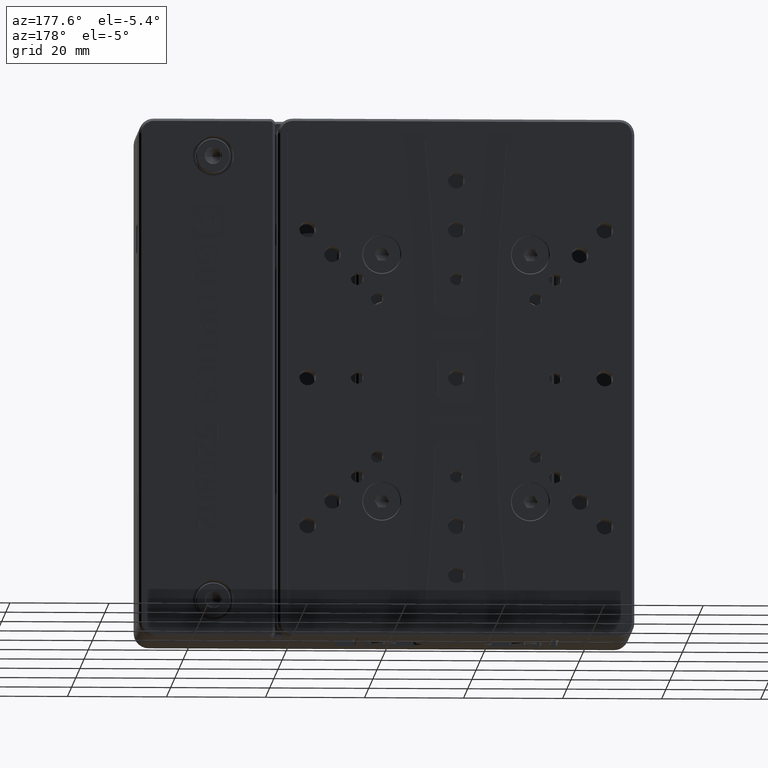
[diagram: clean part render]
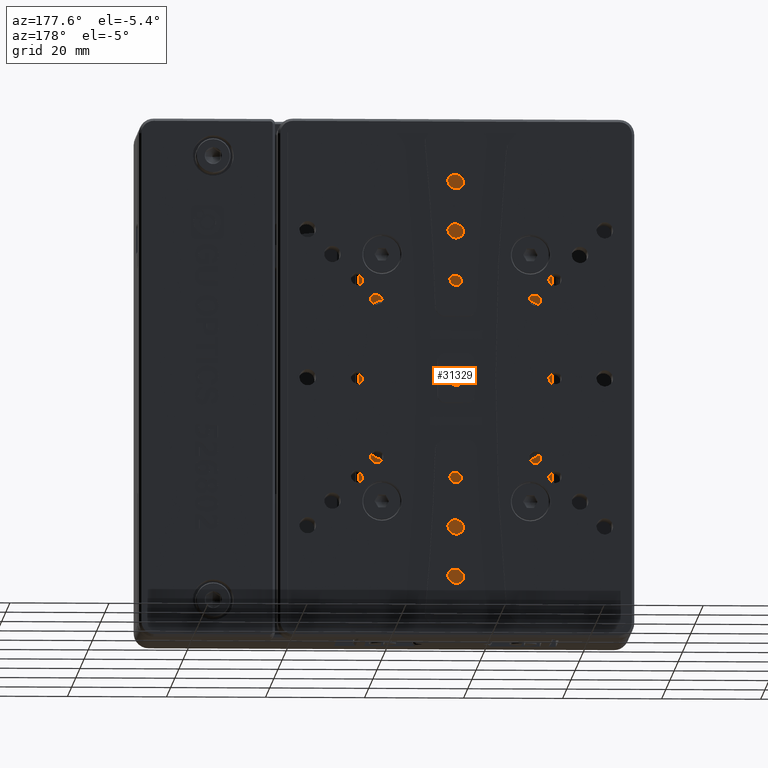
[diagram: same view with one face highlighted and labeled with its STEP entity id]
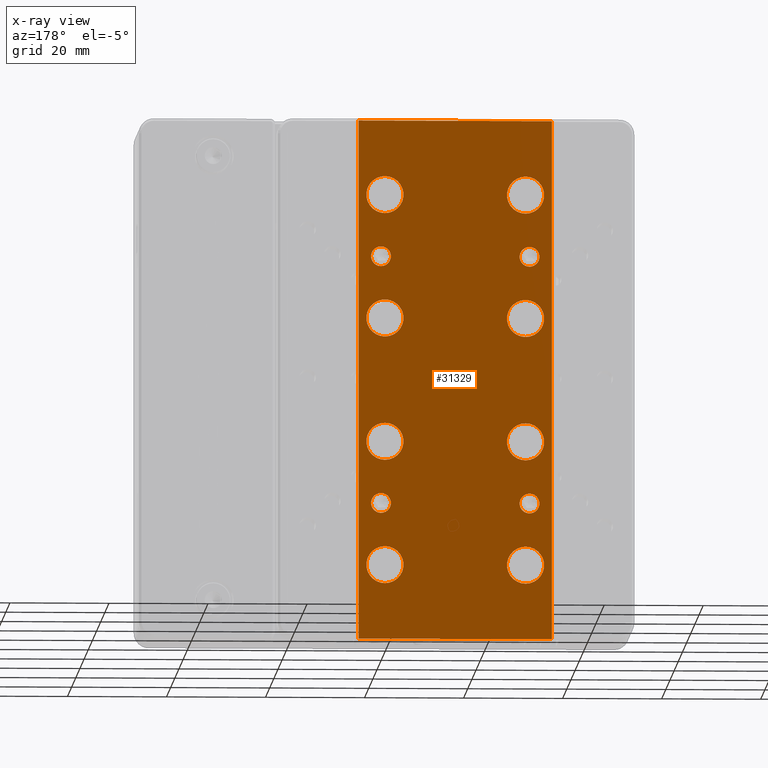
[diagram: x-ray of the same camera — body ghosted, the highlighted face saturated]
A machine part, auxiliary view. The second image highlights one B-rep face of the part: STEP entity #31329.
The next image is the same camera in x-ray: the body ghosted, the highlighted face saturated — about 0% of this face is hidden behind the body in this view.
In plain terms, the highlighted planar face has unit normal (0, -1, 0).
Its self-contained STEP definition (entity closure, byte-faithful):
#79 = VERTEX_POINT ( 'NONE', #44371 ) ;
#360 = ORIENTED_EDGE ( 'NONE', *, *, #38543, .F. ) ;
#695 = AXIS2_PLACEMENT_3D ( 'NONE', #6332, #10308, #6584 ) ;
#933 = EDGE_CURVE ( 'NONE', #35054, #7849, #5997, .T. ) ;
#1155 = EDGE_LOOP ( 'NONE', ( #13964, #43347 ) ) ;
#1630 = VERTEX_POINT ( 'NONE', #28145 ) ;
#1807 = CARTESIAN_POINT ( 'NONE',  ( 0.2000000000000000111, 3.000000000000000000, 12.50000000000000000 ) ) ;
#2130 = VERTEX_POINT ( 'NONE', #12865 ) ;
#2209 = EDGE_LOOP ( 'NONE', ( #28705, #25270 ) ) ;
#2466 = CARTESIAN_POINT ( 'NONE',  ( -28.19999999999999929, 3.000000000000000000, -37.50000000000000000 ) ) ;
#2915 = FACE_BOUND ( 'NONE', #8663, .T. ) ;
#3029 = VERTEX_POINT ( 'NONE', #30313 ) ;
#3383 = CARTESIAN_POINT ( 'NONE',  ( -29.00000000000000000, 2.999999999999670042, 27.00000000000033396 ) ) ;
#3492 = CIRCLE ( 'NONE', #18515, 2.000000000000331291 ) ;
#3522 = CARTESIAN_POINT ( 'NONE',  ( -28.19999999999999929, 3.000000000000000000, -12.50000000000000000 ) ) ;
#3607 = VERTEX_POINT ( 'NONE', #42040 ) ;
#3769 = ORIENTED_EDGE ( 'NONE', *, *, #31819, .F. ) ;
#3899 = DIRECTION ( 'NONE',  ( 0.0000000000000000000, -1.000000000000000000, 0.0000000000000000000 ) ) ;
#4182 = DIRECTION ( 'NONE',  ( 0.0000000000000000000, 0.0000000000000000000, -1.000000000000000000 ) ) ;
#4218 = DIRECTION ( 'NONE',  ( 0.0000000000000000000, 1.000000000000000000, 0.0000000000000000000 ) ) ;
#4270 = DIRECTION ( 'NONE',  ( 0.0000000000000000000, 1.000000000000000000, 0.0000000000000000000 ) ) ;
#4356 = DIRECTION ( 'NONE',  ( 0.0000000000000000000, 1.000000000000000000, 0.0000000000000000000 ) ) ;
#4384 = ORIENTED_EDGE ( 'NONE', *, *, #47435, .F. ) ;
#4391 = DIRECTION ( 'NONE',  ( 0.0000000000000000000, 1.000000000000000000, 0.0000000000000000000 ) ) ;
#4879 = CIRCLE ( 'NONE', #48406, 2.000000000000331291 ) ;
#4972 = LINE ( 'NONE', #20335, #44274 ) ;
#5033 = ORIENTED_EDGE ( 'NONE', *, *, #34596, .F. ) ;
#5063 = CIRCLE ( 'NONE', #32778, 2.000000000000331291 ) ;
#5226 = VERTEX_POINT ( 'NONE', #14138 ) ;
#5797 = DIRECTION ( 'NONE',  ( 0.0000000000000000000, 0.0000000000000000000, 1.000000000000000000 ) ) ;
#5937 = CIRCLE ( 'NONE', #17807, 3.750000000000000000 ) ;
#5987 = EDGE_CURVE ( 'NONE', #7849, #35054, #27136, .T. ) ;
#5997 = CIRCLE ( 'NONE', #23457, 2.000000000000001776 ) ;
#6000 = CARTESIAN_POINT ( 'NONE',  ( 0.2000000000000000111, 3.000000000000000000, -12.50000000000000000 ) ) ;
#6056 = ORIENTED_EDGE ( 'NONE', *, *, #6687, .F. ) ;
#6332 = CARTESIAN_POINT ( 'NONE',  ( 0.2000000000000000111, 3.000000000000000000, -37.50000000000000000 ) ) ;
#6584 = DIRECTION ( 'NONE',  ( 0.0000000000000000000, 0.0000000000000000000, 1.000000000000000000 ) ) ;
#6597 = AXIS2_PLACEMENT_3D ( 'NONE', #19963, #39059, #35101 ) ;
#6685 = EDGE_CURVE ( 'NONE', #41416, #47841, #5063, .T. ) ;
#6687 = EDGE_CURVE ( 'NONE', #23142, #43956, #28793, .T. ) ;
#6854 = CARTESIAN_POINT ( 'NONE',  ( -14.00000000000000000, 3.000000000000000000, 52.50000000000000000 ) ) ;
#7093 = DIRECTION ( 'NONE',  ( 1.000000000000000000, -0.0000000000000000000, -0.0000000000000000000 ) ) ;
#7176 = DIRECTION ( 'NONE',  ( 0.0000000000000000000, 1.000000000000000000, 0.0000000000000000000 ) ) ;
#7363 = PLANE ( 'NONE',  #46572 ) ;
#7385 = CIRCLE ( 'NONE', #6597, 3.749999999999996447 ) ;
#7423 = CIRCLE ( 'NONE', #34372, 2.000000000000001776 ) ;
#7480 = DIRECTION ( 'NONE',  ( 0.0000000000000000000, 1.000000000000000000, 0.0000000000000000000 ) ) ;
#7639 = CARTESIAN_POINT ( 'NONE',  ( 0.2000000000000000111, 3.000000000000000000, 12.50000000000000000 ) ) ;
#7724 = AXIS2_PLACEMENT_3D ( 'NONE', #33223, #26494, #11136 ) ;
#7845 = FACE_BOUND ( 'NONE', #31209, .T. ) ;
#7849 = VERTEX_POINT ( 'NONE', #26476 ) ;
#7931 = AXIS2_PLACEMENT_3D ( 'NONE', #29416, #44292, #44779 ) ;
#8104 = DIRECTION ( 'NONE',  ( 0.0000000000000000000, 1.000000000000000000, 0.0000000000000000000 ) ) ;
#8215 = AXIS2_PLACEMENT_3D ( 'NONE', #38366, #4391, #26457 ) ;
#8279 = EDGE_CURVE ( 'NONE', #43143, #11817, #48235, .T. ) ;
#8663 = EDGE_LOOP ( 'NONE', ( #40364, #4384 ) ) ;
#9011 = CARTESIAN_POINT ( 'NONE',  ( 1.000000000000000000, 3.000000000000000000, 25.00000000000000000 ) ) ;
#9752 = VECTOR ( 'NONE', #22046, 1000.000000000000000 ) ;
#10159 = CARTESIAN_POINT ( 'NONE',  ( 1.000000000000000000, 3.000000000000000000, -25.00000000000000000 ) ) ;
#10308 = DIRECTION ( 'NONE',  ( 0.0000000000000000000, 1.000000000000000000, 0.0000000000000000000 ) ) ;
#10533 = CARTESIAN_POINT ( 'NONE',  ( 5.519999999999999574, 3.000000000000000000, 52.50000000000000000 ) ) ;
#10595 = CARTESIAN_POINT ( 'NONE',  ( -34.30080000000000240, 3.000000000000000000, -54.60000000000000142 ) ) ;
#10729 = VERTEX_POINT ( 'NONE', #16498 ) ;
#10845 = FACE_BOUND ( 'NONE', #33648, .T. ) ;
#11136 = DIRECTION ( 'NONE',  ( 0.0000000000000000000, 0.0000000000000000000, 1.000000000000000000 ) ) ;
#11181 = CIRCLE ( 'NONE', #37298, 3.749999999999996447 ) ;
#11817 = VERTEX_POINT ( 'NONE', #28462 ) ;
#11838 = CARTESIAN_POINT ( 'NONE',  ( -28.19999999999999929, 3.000000000000000000, -41.24999999999999289 ) ) ;
#12368 = VERTEX_POINT ( 'NONE', #19646 ) ;
#12589 = EDGE_CURVE ( 'NONE', #12368, #19780, #11181, .T. ) ;
#12593 = DIRECTION ( 'NONE',  ( 0.0000000000000000000, 1.000000000000000000, 0.0000000000000000000 ) ) ;
#12634 = AXIS2_PLACEMENT_3D ( 'NONE', #18739, #4356, #26663 ) ;
#12640 = DIRECTION ( 'NONE',  ( 0.0000000000000000000, 1.000000000000000000, 0.0000000000000000000 ) ) ;
#12865 = CARTESIAN_POINT ( 'NONE',  ( 0.2000000000000000111, 3.000000000000000000, 41.24999999999999289 ) ) ;
#12870 = VERTEX_POINT ( 'NONE', #45342 ) ;
#13144 = DIRECTION ( 'NONE',  ( -1.000000000000000000, 0.0000000000000000000, 0.0000000000000000000 ) ) ;
#13169 = EDGE_CURVE ( 'NONE', #12870, #20170, #4879, .T. ) ;
#13269 = AXIS2_PLACEMENT_3D ( 'NONE', #2466, #12640, #42893 ) ;
#13281 = EDGE_CURVE ( 'NONE', #26449, #17518, #41554, .T. ) ;
#13335 = ORIENTED_EDGE ( 'NONE', *, *, #41170, .F. ) ;
#13456 = DIRECTION ( 'NONE',  ( 0.0000000000000000000, 1.000000000000000000, 0.0000000000000000000 ) ) ;
#13551 = DIRECTION ( 'NONE',  ( 0.0000000000000000000, 1.000000000000000000, 0.0000000000000000000 ) ) ;
#13964 = ORIENTED_EDGE ( 'NONE', *, *, #933, .F. ) ;
#14010 = CARTESIAN_POINT ( 'NONE',  ( 0.2000000000000004829, 3.000000000000000000, -16.25000000000000000 ) ) ;
#14138 = CARTESIAN_POINT ( 'NONE',  ( 0.2000000000000004829, 3.000000000000000000, 33.75000000000000000 ) ) ;
#14289 = EDGE_LOOP ( 'NONE', ( #24473, #6056 ) ) ;
#14521 = AXIS2_PLACEMENT_3D ( 'NONE', #38475, #4270, #16155 ) ;
#14559 = FACE_BOUND ( 'NONE', #42158, .T. ) ;
#14643 = EDGE_CURVE ( 'NONE', #31777, #10729, #37450, .T. ) ;
#14783 = ORIENTED_EDGE ( 'NONE', *, *, #49057, .T. ) ;
#14830 = CIRCLE ( 'NONE', #7724, 3.750000000000000000 ) ;
#14882 = DIRECTION ( 'NONE',  ( 0.0000000000000000000, 0.0000000000000000000, 1.000000000000000000 ) ) ;
#15048 = FACE_OUTER_BOUND ( 'NONE', #19269, .T. ) ;
#15075 = EDGE_CURVE ( 'NONE', #42093, #17518, #25771, .T. ) ;
#15229 = ORIENTED_EDGE ( 'NONE', *, *, #30089, .F. ) ;
#15293 = FACE_BOUND ( 'NONE', #2209, .T. ) ;
#15324 = DIRECTION ( 'NONE',  ( 0.0000000000000000000, 1.000000000000000000, 0.0000000000000000000 ) ) ;
#15333 = CARTESIAN_POINT ( 'NONE',  ( -33.52000000000000313, 3.000000000000000000, 0.0000000000000000000 ) ) ;
#15370 = CARTESIAN_POINT ( 'NONE',  ( 0.2000000000000000111, 3.000000000000000000, 37.50000000000000000 ) ) ;
#16073 = CARTESIAN_POINT ( 'NONE',  ( -29.00000000000000000, 2.999999999999670042, 25.00000000000000000 ) ) ;
#16155 = DIRECTION ( 'NONE',  ( 0.0000000000000000000, 0.0000000000000000000, 1.000000000000000000 ) ) ;
#16271 = VERTEX_POINT ( 'NONE', #16577 ) ;
#16291 = CIRCLE ( 'NONE', #24201, 3.749999999999996447 ) ;
#16498 = CARTESIAN_POINT ( 'NONE',  ( 0.2000000000000000111, 3.000000000000000000, 16.25000000000000000 ) ) ;
#16577 = CARTESIAN_POINT ( 'NONE',  ( 1.000000000000000222, 3.000000000000000000, -26.99999999999998579 ) ) ;
#16766 = ORIENTED_EDGE ( 'NONE', *, *, #21961, .F. ) ;
#16915 = ORIENTED_EDGE ( 'NONE', *, *, #13281, .T. ) ;
#17296 = CIRCLE ( 'NONE', #41060, 3.750000000000000000 ) ;
#17518 = VERTEX_POINT ( 'NONE', #10533 ) ;
#17807 = AXIS2_PLACEMENT_3D ( 'NONE', #41173, #18609, #14882 ) ;
#18023 = FACE_BOUND ( 'NONE', #43389, .T. ) ;
#18462 = VERTEX_POINT ( 'NONE', #14010 ) ;
#18515 = AXIS2_PLACEMENT_3D ( 'NONE', #39768, #24631, #5797 ) ;
#18609 = DIRECTION ( 'NONE',  ( 0.0000000000000000000, 1.000000000000000000, 0.0000000000000000000 ) ) ;
#18739 = CARTESIAN_POINT ( 'NONE',  ( -28.19999999999999929, 3.000000000000000000, -37.50000000000000000 ) ) ;
#18767 = ORIENTED_EDGE ( 'NONE', *, *, #6685, .F. ) ;
#18980 = CARTESIAN_POINT ( 'NONE',  ( -28.19999999999999929, 3.000000000000000000, 12.50000000000000000 ) ) ;
#18984 = CIRCLE ( 'NONE', #31670, 3.750000000000000000 ) ;
#19068 = DIRECTION ( 'NONE',  ( 0.0000000000000000000, 0.0000000000000000000, 1.000000000000000000 ) ) ;
#19269 = EDGE_LOOP ( 'NONE', ( #16915, #23451, #14783, #13335 ) ) ;
#19331 = DIRECTION ( 'NONE',  ( 0.0000000000000000000, 0.0000000000000000000, 1.000000000000000000 ) ) ;
#19646 = CARTESIAN_POINT ( 'NONE',  ( -28.19999999999999929, 3.000000000000000000, 41.24999999999999289 ) ) ;
#19780 = VERTEX_POINT ( 'NONE', #34529 ) ;
#19952 = VECTOR ( 'NONE', #7093, 1000.000000000000000 ) ;
#19963 = CARTESIAN_POINT ( 'NONE',  ( 0.2000000000000000111, 3.000000000000000000, -37.50000000000000000 ) ) ;
#20170 = VERTEX_POINT ( 'NONE', #23776 ) ;
#20335 = CARTESIAN_POINT ( 'NONE',  ( -14.00000000000000000, 3.000000000000000000, -52.50000000000000000 ) ) ;
#20396 = DIRECTION ( 'NONE',  ( 0.0000000000000000000, 1.000000000000000000, 0.0000000000000000000 ) ) ;
#20846 = EDGE_CURVE ( 'NONE', #79, #25661, #37897, .T. ) ;
#21122 = DIRECTION ( 'NONE',  ( 0.0000000000000000000, 0.0000000000000000000, 1.000000000000000000 ) ) ;
#21961 = EDGE_CURVE ( 'NONE', #3607, #40371, #18984, .T. ) ;
#22046 = DIRECTION ( 'NONE',  ( 0.0000000000000000000, 0.0000000000000000000, 1.000000000000000000 ) ) ;
#22257 = CARTESIAN_POINT ( 'NONE',  ( -28.19999999999999929, 3.000000000000000000, -8.750000000000000000 ) ) ;
#22264 = CARTESIAN_POINT ( 'NONE',  ( 0.2000000000000000111, 3.000000000000000000, -33.75000000000000000 ) ) ;
#22273 = LINE ( 'NONE', #15333, #28173 ) ;
#22390 = AXIS2_PLACEMENT_3D ( 'NONE', #1807, #20396, #35294 ) ;
#22723 = DIRECTION ( 'NONE',  ( 1.000000000000000000, 0.0000000000000000000, 0.0000000000000000000 ) ) ;
#22756 = DIRECTION ( 'NONE',  ( 0.0000000000000000000, 0.0000000000000000000, 1.000000000000000000 ) ) ;
#22761 = CIRCLE ( 'NONE', #31480, 2.000000000000331291 ) ;
#23055 = DIRECTION ( 'NONE',  ( 0.0000000000000000000, 0.0000000000000000000, 1.000000000000000000 ) ) ;
#23142 = VERTEX_POINT ( 'NONE', #33087 ) ;
#23218 = DIRECTION ( 'NONE',  ( 0.0000000000000000000, 0.0000000000000000000, 1.000000000000000000 ) ) ;
#23451 = ORIENTED_EDGE ( 'NONE', *, *, #15075, .F. ) ;
#23457 = AXIS2_PLACEMENT_3D ( 'NONE', #9011, #13456, #46686 ) ;
#23776 = CARTESIAN_POINT ( 'NONE',  ( -29.00000000000000000, 2.999999999999670042, -27.00000000000033751 ) ) ;
#24201 = AXIS2_PLACEMENT_3D ( 'NONE', #15370, #4218, #19331 ) ;
#24473 = ORIENTED_EDGE ( 'NONE', *, *, #48863, .F. ) ;
#24631 = DIRECTION ( 'NONE',  ( 0.0000000000000000000, 1.000000000000000000, 0.0000000000000000000 ) ) ;
#25270 = ORIENTED_EDGE ( 'NONE', *, *, #14643, .F. ) ;
#25661 = VERTEX_POINT ( 'NONE', #22264 ) ;
#25771 = LINE ( 'NONE', #28745, #9752 ) ;
#25957 = EDGE_LOOP ( 'NONE', ( #46235, #39609 ) ) ;
#26196 = FACE_BOUND ( 'NONE', #1155, .T. ) ;
#26206 = EDGE_CURVE ( 'NONE', #20170, #12870, #3492, .T. ) ;
#26441 = FACE_BOUND ( 'NONE', #48158, .T. ) ;
#26449 = VERTEX_POINT ( 'NONE', #35508 ) ;
#26457 = DIRECTION ( 'NONE',  ( 0.0000000000000000000, 0.0000000000000000000, 1.000000000000000000 ) ) ;
#26476 = CARTESIAN_POINT ( 'NONE',  ( 1.000000000000000222, 3.000000000000000000, 23.00000000000001776 ) ) ;
#26494 = DIRECTION ( 'NONE',  ( 0.0000000000000000000, 1.000000000000000000, 0.0000000000000000000 ) ) ;
#26663 = DIRECTION ( 'NONE',  ( 0.0000000000000000000, 0.0000000000000000000, 1.000000000000000000 ) ) ;
#26740 = CARTESIAN_POINT ( 'NONE',  ( 1.000000000000000000, 3.000000000000000000, -25.00000000000000000 ) ) ;
#26744 = ORIENTED_EDGE ( 'NONE', *, *, #8279, .F. ) ;
#27136 = CIRCLE ( 'NONE', #14521, 2.000000000000001776 ) ;
#27206 = DIRECTION ( 'NONE',  ( 0.0000000000000000000, 0.0000000000000000000, 1.000000000000000000 ) ) ;
#28145 = CARTESIAN_POINT ( 'NONE',  ( 1.000000000000000000, 3.000000000000000000, -23.00000000000001776 ) ) ;
#28173 = VECTOR ( 'NONE', #4182, 1000.000000000000000 ) ;
#28404 = CIRCLE ( 'NONE', #48239, 3.749999999999996447 ) ;
#28430 = CIRCLE ( 'NONE', #41918, 3.750000000000000000 ) ;
#28462 = CARTESIAN_POINT ( 'NONE',  ( -28.19999999999999929, 3.000000000000000000, -33.75000000000000000 ) ) ;
#28558 = DIRECTION ( 'NONE',  ( 0.0000000000000000000, 1.000000000000000000, 0.0000000000000000000 ) ) ;
#28660 = DIRECTION ( 'NONE',  ( 0.0000000000000000000, 0.0000000000000000000, 1.000000000000000000 ) ) ;
#28705 = ORIENTED_EDGE ( 'NONE', *, *, #40153, .F. ) ;
#28745 = CARTESIAN_POINT ( 'NONE',  ( 5.519999999999999574, 3.000000000000000000, 0.0000000000000000000 ) ) ;
#28793 = CIRCLE ( 'NONE', #8215, 3.750000000000000000 ) ;
#28818 = ORIENTED_EDGE ( 'NONE', *, *, #13169, .F. ) ;
#28907 = DIRECTION ( 'NONE',  ( 0.0000000000000000000, 1.000000000000000000, 0.0000000000000000000 ) ) ;
#29416 = CARTESIAN_POINT ( 'NONE',  ( -28.19999999999999929, 3.000000000000000000, 37.50000000000000000 ) ) ;
#29644 = DIRECTION ( 'NONE',  ( 0.0000000000000000000, 0.0000000000000000000, 1.000000000000000000 ) ) ;
#29675 = FACE_BOUND ( 'NONE', #43572, .T. ) ;
#30089 = EDGE_CURVE ( 'NONE', #3029, #18462, #14830, .T. ) ;
#30170 = FACE_BOUND ( 'NONE', #45508, .T. ) ;
#30173 = EDGE_CURVE ( 'NONE', #47841, #41416, #22761, .T. ) ;
#30313 = CARTESIAN_POINT ( 'NONE',  ( 0.2000000000000000111, 3.000000000000000000, -8.750000000000000000 ) ) ;
#31043 = ORIENTED_EDGE ( 'NONE', *, *, #39809, .F. ) ;
#31209 = EDGE_LOOP ( 'NONE', ( #42271, #26744 ) ) ;
#31329 = ADVANCED_FACE ( 'NONE', ( #14559, #26441, #10845, #26196, #7845, #37116, #30170, #2915, #18023, #29675, #15293, #49012, #15048 ), #7363, .F. ) ;
#31480 = AXIS2_PLACEMENT_3D ( 'NONE', #16073, #12593, #27206 ) ;
#31670 = AXIS2_PLACEMENT_3D ( 'NONE', #18980, #41795, #29644 ) ;
#31777 = VERTEX_POINT ( 'NONE', #42496 ) ;
#31819 = EDGE_CURVE ( 'NONE', #18462, #3029, #17296, .T. ) ;
#32081 = AXIS2_PLACEMENT_3D ( 'NONE', #7639, #15324, #22756 ) ;
#32398 = CARTESIAN_POINT ( 'NONE',  ( -29.00000000000000000, 2.999999999999670042, -25.00000000000000000 ) ) ;
#32778 = AXIS2_PLACEMENT_3D ( 'NONE', #42085, #8104, #23218 ) ;
#32859 = CIRCLE ( 'NONE', #32081, 3.750000000000000000 ) ;
#33087 = CARTESIAN_POINT ( 'NONE',  ( -28.19999999999999929, 3.000000000000000000, -16.25000000000000000 ) ) ;
#33223 = CARTESIAN_POINT ( 'NONE',  ( 0.2000000000000000111, 3.000000000000000000, -12.50000000000000000 ) ) ;
#33248 = AXIS2_PLACEMENT_3D ( 'NONE', #26740, #41878, #19068 ) ;
#33529 = DIRECTION ( 'NONE',  ( 0.0000000000000000000, 0.0000000000000000000, 1.000000000000000000 ) ) ;
#33648 = EDGE_LOOP ( 'NONE', ( #360, #5033 ) ) ;
#34372 = AXIS2_PLACEMENT_3D ( 'NONE', #10159, #7176, #48328 ) ;
#34439 = CARTESIAN_POINT ( 'NONE',  ( 5.519999999999999574, 3.000000000000000000, -52.50000000000000000 ) ) ;
#34529 = CARTESIAN_POINT ( 'NONE',  ( -28.19999999999999929, 3.000000000000000000, 33.75000000000000000 ) ) ;
#34596 = EDGE_CURVE ( 'NONE', #16271, #1630, #44306, .T. ) ;
#34672 = CIRCLE ( 'NONE', #13269, 3.749999999999996447 ) ;
#35054 = VERTEX_POINT ( 'NONE', #38582 ) ;
#35101 = DIRECTION ( 'NONE',  ( 0.0000000000000000000, 0.0000000000000000000, 1.000000000000000000 ) ) ;
#35294 = DIRECTION ( 'NONE',  ( 0.0000000000000000000, 0.0000000000000000000, 1.000000000000000000 ) ) ;
#35508 = CARTESIAN_POINT ( 'NONE',  ( -33.52000000000000313, 2.999999999999690026, 52.50000000000000000 ) ) ;
#36612 = ORIENTED_EDGE ( 'NONE', *, *, #37745, .F. ) ;
#37116 = FACE_BOUND ( 'NONE', #14289, .T. ) ;
#37298 = AXIS2_PLACEMENT_3D ( 'NONE', #45641, #45398, #23055 ) ;
#37450 = CIRCLE ( 'NONE', #22390, 3.750000000000000000 ) ;
#37745 = EDGE_CURVE ( 'NONE', #25661, #79, #7385, .T. ) ;
#37897 = CIRCLE ( 'NONE', #695, 3.749999999999996447 ) ;
#38366 = CARTESIAN_POINT ( 'NONE',  ( -28.19999999999999929, 3.000000000000000000, -12.50000000000000000 ) ) ;
#38438 = ORIENTED_EDGE ( 'NONE', *, *, #30173, .F. ) ;
#38475 = CARTESIAN_POINT ( 'NONE',  ( 1.000000000000000000, 3.000000000000000000, 25.00000000000000000 ) ) ;
#38543 = EDGE_CURVE ( 'NONE', #1630, #16271, #7423, .T. ) ;
#38582 = CARTESIAN_POINT ( 'NONE',  ( 1.000000000000000000, 3.000000000000000000, 26.99999999999998579 ) ) ;
#39059 = DIRECTION ( 'NONE',  ( 0.0000000000000000000, 1.000000000000000000, 0.0000000000000000000 ) ) ;
#39089 = CARTESIAN_POINT ( 'NONE',  ( -33.52000000000000313, 2.999999999999690026, -52.50000000000000000 ) ) ;
#39534 = CIRCLE ( 'NONE', #7931, 3.749999999999996447 ) ;
#39609 = ORIENTED_EDGE ( 'NONE', *, *, #42756, .F. ) ;
#39768 = CARTESIAN_POINT ( 'NONE',  ( -29.00000000000000000, 2.999999999999670042, -25.00000000000000000 ) ) ;
#39782 = CARTESIAN_POINT ( 'NONE',  ( -29.00000000000000000, 2.999999999999670042, 22.99999999999966960 ) ) ;
#39809 = EDGE_CURVE ( 'NONE', #40371, #3607, #5937, .T. ) ;
#40153 = EDGE_CURVE ( 'NONE', #10729, #31777, #32859, .T. ) ;
#40364 = ORIENTED_EDGE ( 'NONE', *, *, #12589, .F. ) ;
#40371 = VERTEX_POINT ( 'NONE', #47014 ) ;
#41060 = AXIS2_PLACEMENT_3D ( 'NONE', #6000, #28558, #21122 ) ;
#41170 = EDGE_CURVE ( 'NONE', #26449, #43103, #22273, .T. ) ;
#41173 = CARTESIAN_POINT ( 'NONE',  ( -28.19999999999999929, 3.000000000000000000, 12.50000000000000000 ) ) ;
#41416 = VERTEX_POINT ( 'NONE', #3383 ) ;
#41554 = LINE ( 'NONE', #6854, #19952 ) ;
#41795 = DIRECTION ( 'NONE',  ( 0.0000000000000000000, 1.000000000000000000, 0.0000000000000000000 ) ) ;
#41878 = DIRECTION ( 'NONE',  ( 0.0000000000000000000, 1.000000000000000000, 0.0000000000000000000 ) ) ;
#41918 = AXIS2_PLACEMENT_3D ( 'NONE', #3522, #7480, #33529 ) ;
#42040 = CARTESIAN_POINT ( 'NONE',  ( -28.19999999999999929, 3.000000000000000000, 8.750000000000000000 ) ) ;
#42085 = CARTESIAN_POINT ( 'NONE',  ( -29.00000000000000000, 2.999999999999670042, 25.00000000000000000 ) ) ;
#42093 = VERTEX_POINT ( 'NONE', #34439 ) ;
#42158 = EDGE_LOOP ( 'NONE', ( #28818, #43488 ) ) ;
#42271 = ORIENTED_EDGE ( 'NONE', *, *, #45329, .F. ) ;
#42496 = CARTESIAN_POINT ( 'NONE',  ( 0.2000000000000004829, 3.000000000000000000, 8.750000000000000000 ) ) ;
#42756 = EDGE_CURVE ( 'NONE', #5226, #2130, #16291, .T. ) ;
#42893 = DIRECTION ( 'NONE',  ( 0.0000000000000000000, 0.0000000000000000000, 1.000000000000000000 ) ) ;
#43103 = VERTEX_POINT ( 'NONE', #39089 ) ;
#43143 = VERTEX_POINT ( 'NONE', #11838 ) ;
#43347 = ORIENTED_EDGE ( 'NONE', *, *, #5987, .F. ) ;
#43389 = EDGE_LOOP ( 'NONE', ( #36612, #48765 ) ) ;
#43488 = ORIENTED_EDGE ( 'NONE', *, *, #26206, .F. ) ;
#43572 = EDGE_LOOP ( 'NONE', ( #15229, #3769 ) ) ;
#43956 = VERTEX_POINT ( 'NONE', #22257 ) ;
#44274 = VECTOR ( 'NONE', #13144, 1000.000000000000000 ) ;
#44292 = DIRECTION ( 'NONE',  ( 0.0000000000000000000, 1.000000000000000000, 0.0000000000000000000 ) ) ;
#44306 = CIRCLE ( 'NONE', #33248, 2.000000000000001776 ) ;
#44371 = CARTESIAN_POINT ( 'NONE',  ( 0.2000000000000004829, 3.000000000000000000, -41.24999999999999289 ) ) ;
#44771 = CARTESIAN_POINT ( 'NONE',  ( 0.2000000000000000111, 3.000000000000000000, 37.50000000000000000 ) ) ;
#44779 = DIRECTION ( 'NONE',  ( 0.0000000000000000000, 0.0000000000000000000, 1.000000000000000000 ) ) ;
#45329 = EDGE_CURVE ( 'NONE', #11817, #43143, #34672, .T. ) ;
#45342 = CARTESIAN_POINT ( 'NONE',  ( -29.00000000000000000, 2.999999999999670042, -22.99999999999966604 ) ) ;
#45398 = DIRECTION ( 'NONE',  ( 0.0000000000000000000, 1.000000000000000000, 0.0000000000000000000 ) ) ;
#45508 = EDGE_LOOP ( 'NONE', ( #31043, #16766 ) ) ;
#45641 = CARTESIAN_POINT ( 'NONE',  ( -28.19999999999999929, 3.000000000000000000, 37.50000000000000000 ) ) ;
#46235 = ORIENTED_EDGE ( 'NONE', *, *, #46635, .F. ) ;
#46572 = AXIS2_PLACEMENT_3D ( 'NONE', #10595, #3899, #22723 ) ;
#46635 = EDGE_CURVE ( 'NONE', #2130, #5226, #28404, .T. ) ;
#46686 = DIRECTION ( 'NONE',  ( 0.0000000000000000000, 0.0000000000000000000, 1.000000000000000000 ) ) ;
#47014 = CARTESIAN_POINT ( 'NONE',  ( -28.19999999999999929, 3.000000000000000000, 16.25000000000000000 ) ) ;
#47435 = EDGE_CURVE ( 'NONE', #19780, #12368, #39534, .T. ) ;
#47841 = VERTEX_POINT ( 'NONE', #39782 ) ;
#48002 = DIRECTION ( 'NONE',  ( 0.0000000000000000000, 0.0000000000000000000, 1.000000000000000000 ) ) ;
#48158 = EDGE_LOOP ( 'NONE', ( #18767, #38438 ) ) ;
#48235 = CIRCLE ( 'NONE', #12634, 3.749999999999996447 ) ;
#48239 = AXIS2_PLACEMENT_3D ( 'NONE', #44771, #28907, #48002 ) ;
#48328 = DIRECTION ( 'NONE',  ( 0.0000000000000000000, 0.0000000000000000000, 1.000000000000000000 ) ) ;
#48406 = AXIS2_PLACEMENT_3D ( 'NONE', #32398, #13551, #28660 ) ;
#48765 = ORIENTED_EDGE ( 'NONE', *, *, #20846, .F. ) ;
#48863 = EDGE_CURVE ( 'NONE', #43956, #23142, #28430, .T. ) ;
#49012 = FACE_BOUND ( 'NONE', #25957, .T. ) ;
#49057 = EDGE_CURVE ( 'NONE', #42093, #43103, #4972, .T. ) ;